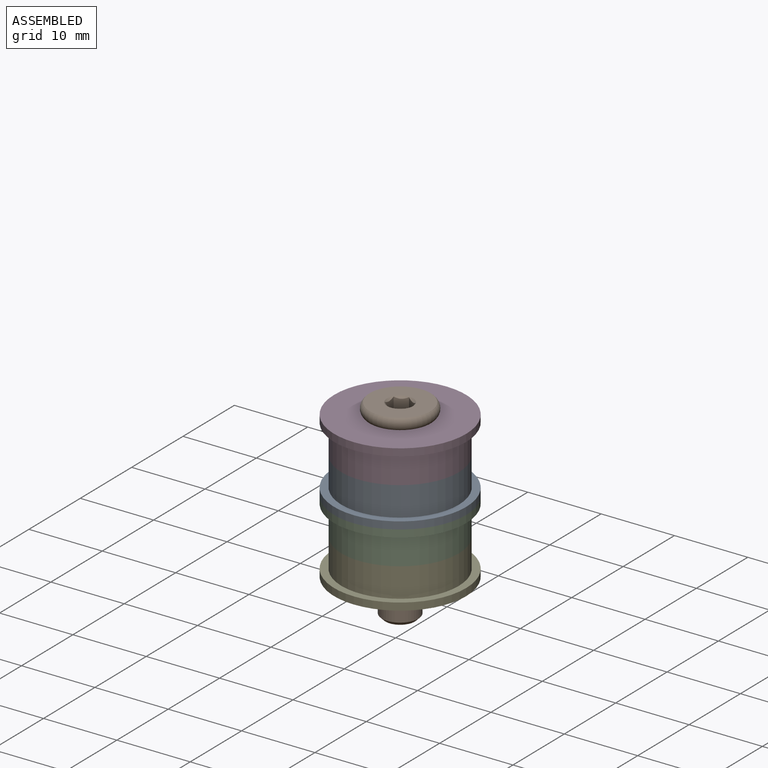
[diagram: assembled view]
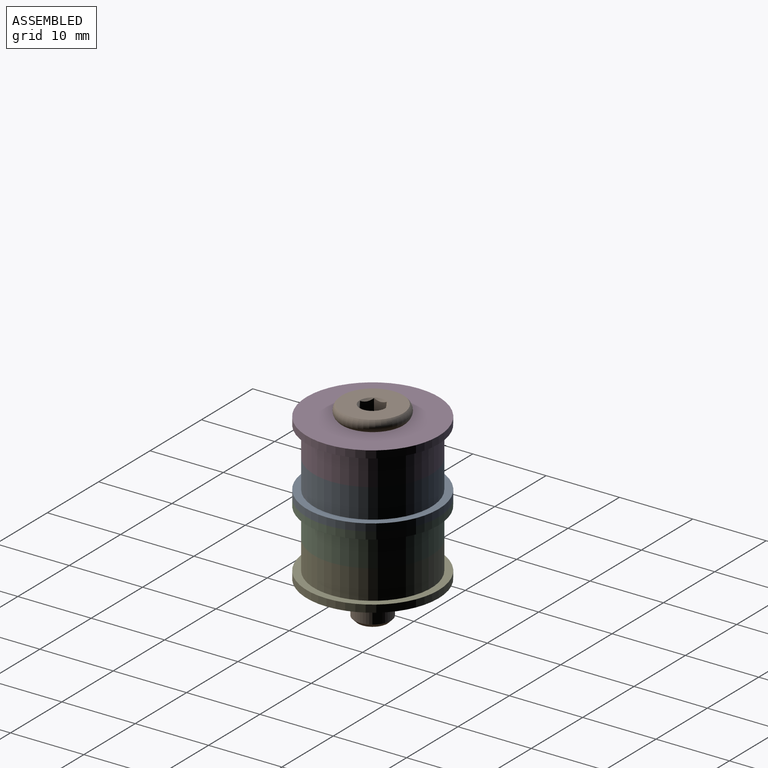
[diagram: assembled view, second angle]
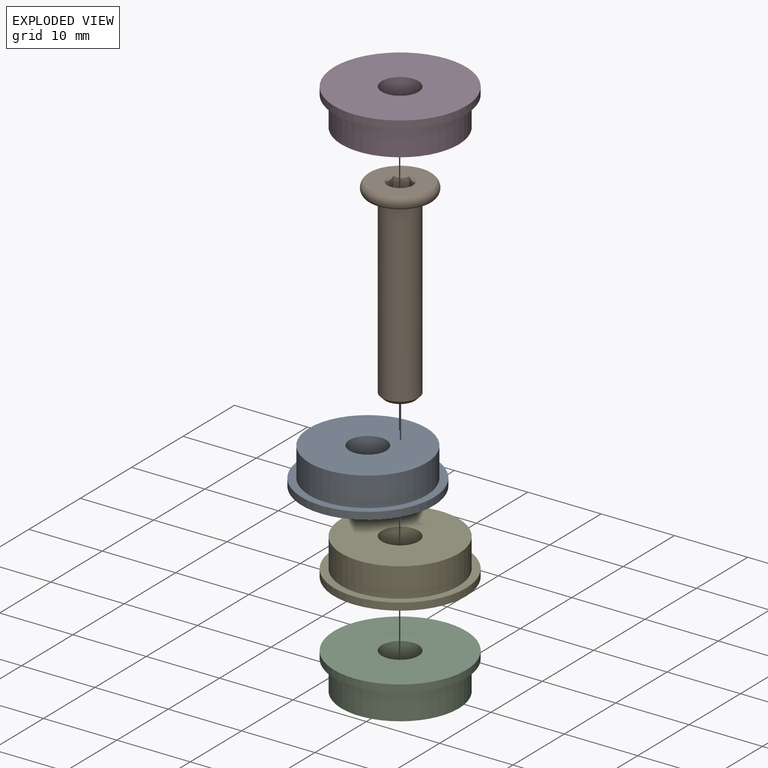
[diagram: exploded view]
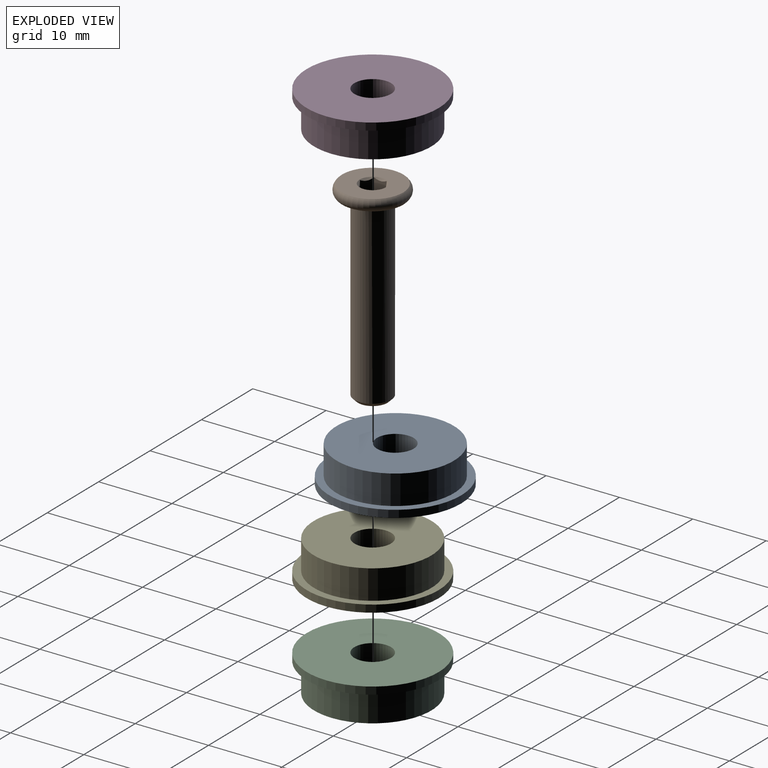
[diagram: exploded view, second angle]
ASSEMBLY  parts=5 mates=4
PART A: 6 faces, bbox 18x18x5 mm
  f0: cylinder r=2.5mm len=5mm, axis (0,0,-1), area 78.5mm2, adj f1,f5
  f1: plane 16x16mm, normal (0,0,-1), area 181.4mm2, adj f0,f2
  f2: cylinder r=8mm len=16mm, axis (0,0,-1), area 201.1mm2, adj f1,f3
  f3: plane 18x18mm, normal (0,0,-1), area 53.4mm2, adj f2,f4
  f4: cylinder r=9mm len=18mm, axis (0,0,-1), area 56.5mm2, adj f3,f5
  f5: plane 18x18mm, normal (0,0,1), area 234.8mm2, adj f0,f4
PART B: 14 faces, bbox 26.8x9.7x9.7 mm
  f0: cylinder r=2.5mm len=24.5mm, axis (1,0,0), area 384.8mm2, adj f2,f5
  f1: plane 4x4mm, normal (1,0,0), area 12.6mm2, adj f2
  f2: cone r=2mm half-angle=45deg, axis (-1,0,0), area 10mm2, adj f0,f1
  f3: plane 8.32x8.32mm, normal (-1,0,0), area 44.4mm2, adj f4,f6
  f4: torus R=3.5mm, axis (-1,0,0), area 46.7mm2, adj f3,f5
  f5: plane 8.32x8.32mm, normal (1,0,0), area 34.8mm2, adj f0,f4
  f6: cone r=1.78mm half-angle=45deg, axis (-1,0,0), area 3.1mm2, adj f3,f8,f9,f10,f11,f12,f13
  f7: plane 3.46x3mm, normal (-1,0,0), area 7.8mm2, adj f8,f9,f10,f11,f12,f13
  f8: plane 2.25x1.5mm, normal (0,-0.87,0.5), area 3.6mm2, adj f6,f7,f9,f13
  f9: plane 2.25x1.73mm, normal (0,0,1), area 3.6mm2, adj f6,f7,f8,f10
  f10: plane 2.25x1.5mm, normal (0,0.87,0.5), area 3.6mm2, adj f6,f7,f9,f11
  f11: plane 2.25x1.5mm, normal (0,0.87,-0.5), area 3.6mm2, adj f6,f7,f10,f12
  f12: plane 2.25x1.73mm, normal (0,0,-1), area 3.6mm2, adj f6,f7,f11,f13
  f13: plane 2.25x1.5mm, normal (0,-0.87,-0.5), area 3.6mm2, adj f6,f7,f8,f12
PART C: same geometry as A
PART D: same geometry as A
PART E: same geometry as A
PLACE A rot(axis=(1,0,0),180deg) t=(-0.84,-2.21,-5.08)mm
PLACE B rot(axis=(0.71,0,-0.71),180deg) t=(-0.84,-2.21,-50.08)mm
PLACE C t=(-0.84,-2.21,-15.08)mm
PLACE D t=(-0.84,-2.21,-5.08)mm
PLACE E rot(axis=(1,0,0),180deg) t=(-0.84,-2.21,-15.08)mm
MATE fastened E.f0 <-> C.f0  axis (0,0,1) through (-0.84,-2.21,-15.08)mm
MATE fastened A.f0 <-> D.f0  axis (0,0,1) through (-0.84,-2.21,-5.08)mm
MATE fastened B.f0 <-> D.f0  axis (0,0,-1) through (-0.84,-2.21,-0.08)mm
MATE fastened A.f0 <-> C.f0  axis (0,0,1) through (-0.84,-2.21,-10.08)mm
